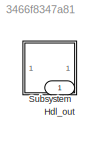
MODEL slx_3466f8347a81
KIND model
CONFIG AbsTol = auto
CONFIG EnableMultiTasking = off
CONFIG FixedStep = auto
CONFIG MaxStep = auto
CONFIG MinStep = auto
CONFIG RelTol = 1e-3
CONFIG SampleTimeConstraint = Unconstrained
CONFIG SolverName = VariableStepAuto
CONFIG StartTime = 0.0
CONFIG StopTime = 10.0
BLOCK [Outport] Hdl_out
  OutDataTypeStr = uint8
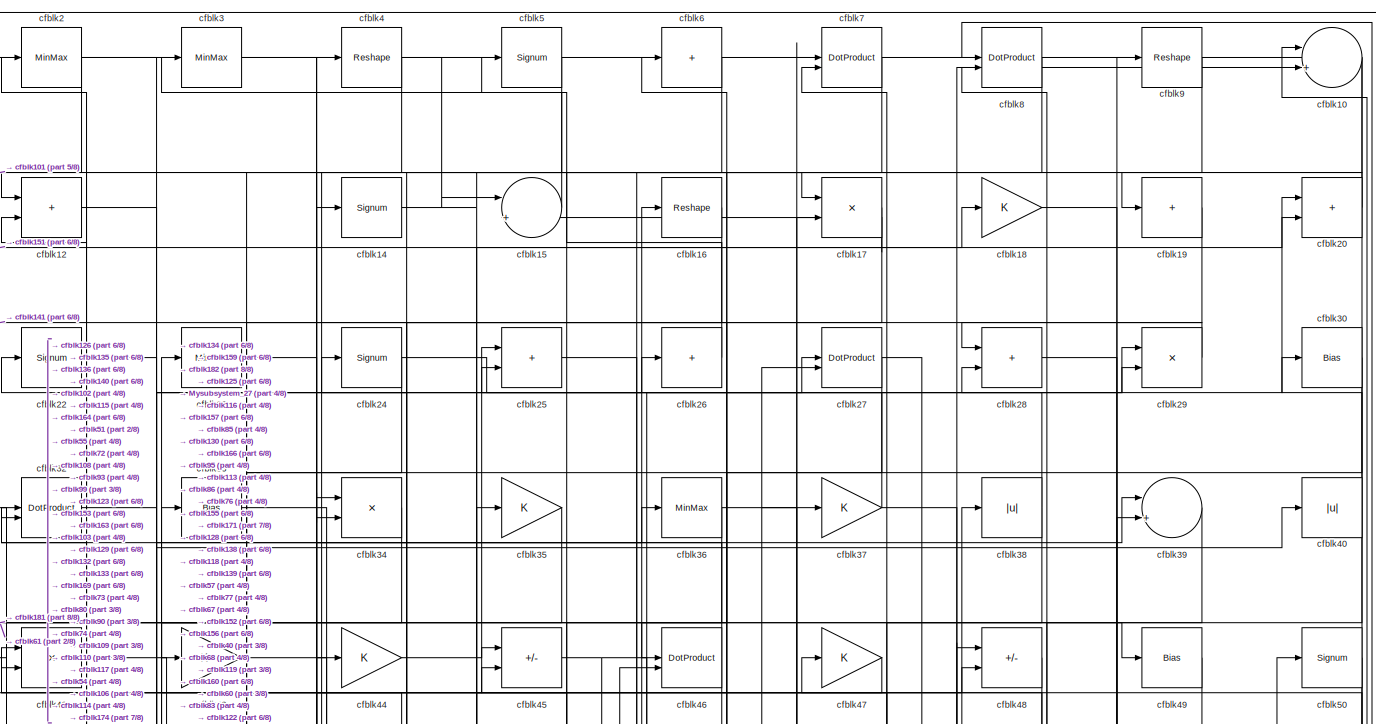
[diagram: Subsystem - part 1/8, full width, top band]
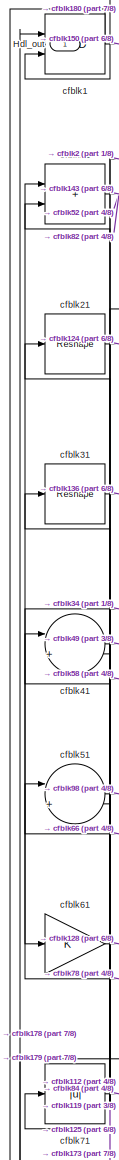
[diagram: Subsystem - part 2/8, top left region]
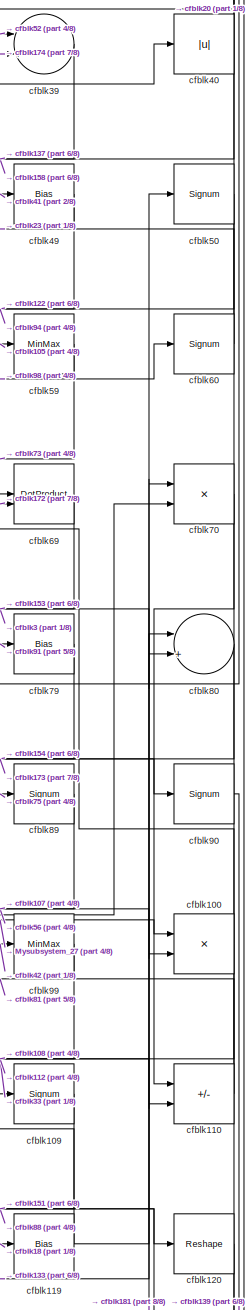
[diagram: Subsystem - part 3/8, middle right region]
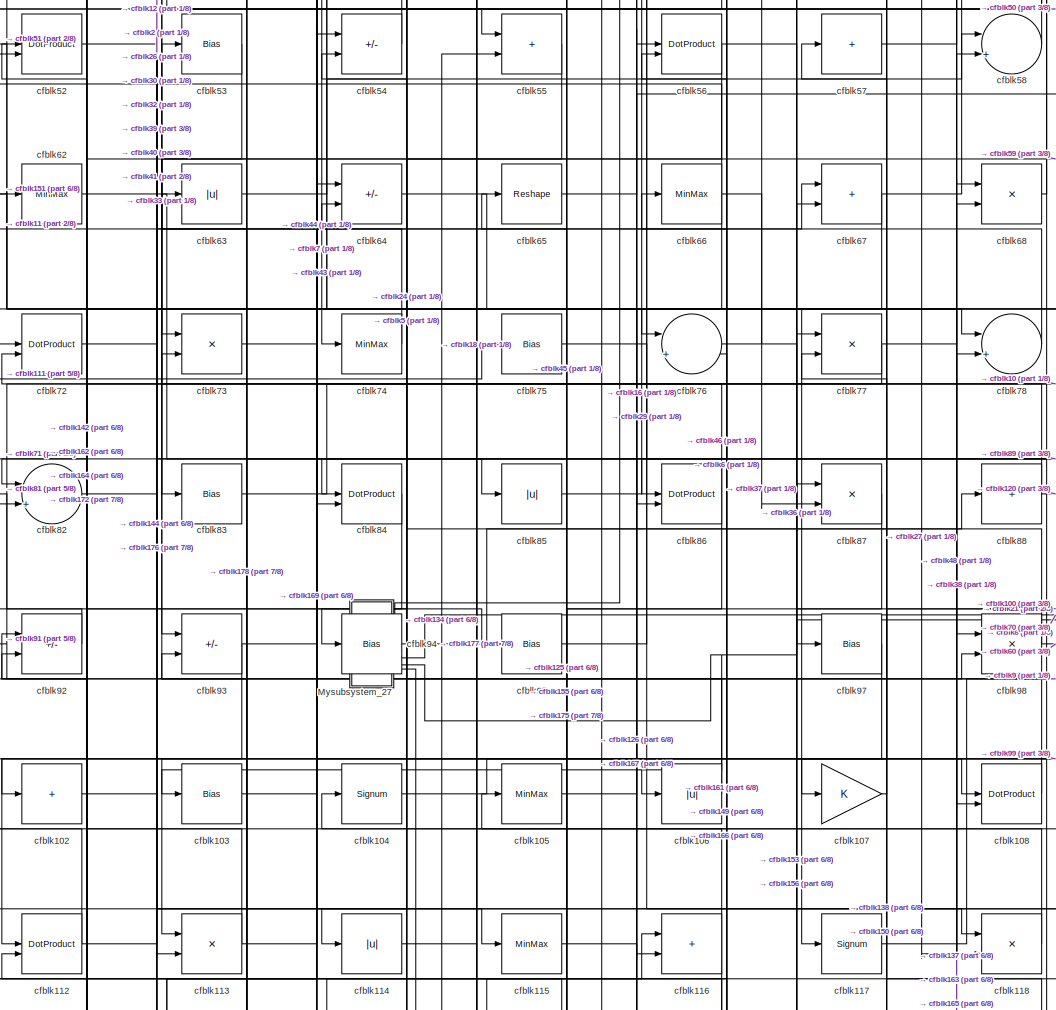
[diagram: Subsystem - part 4/8, central region]
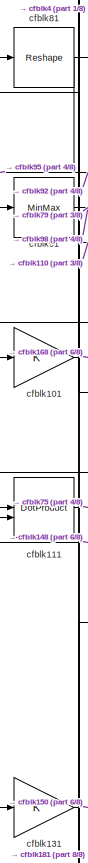
[diagram: Subsystem - part 5/8, middle left region]
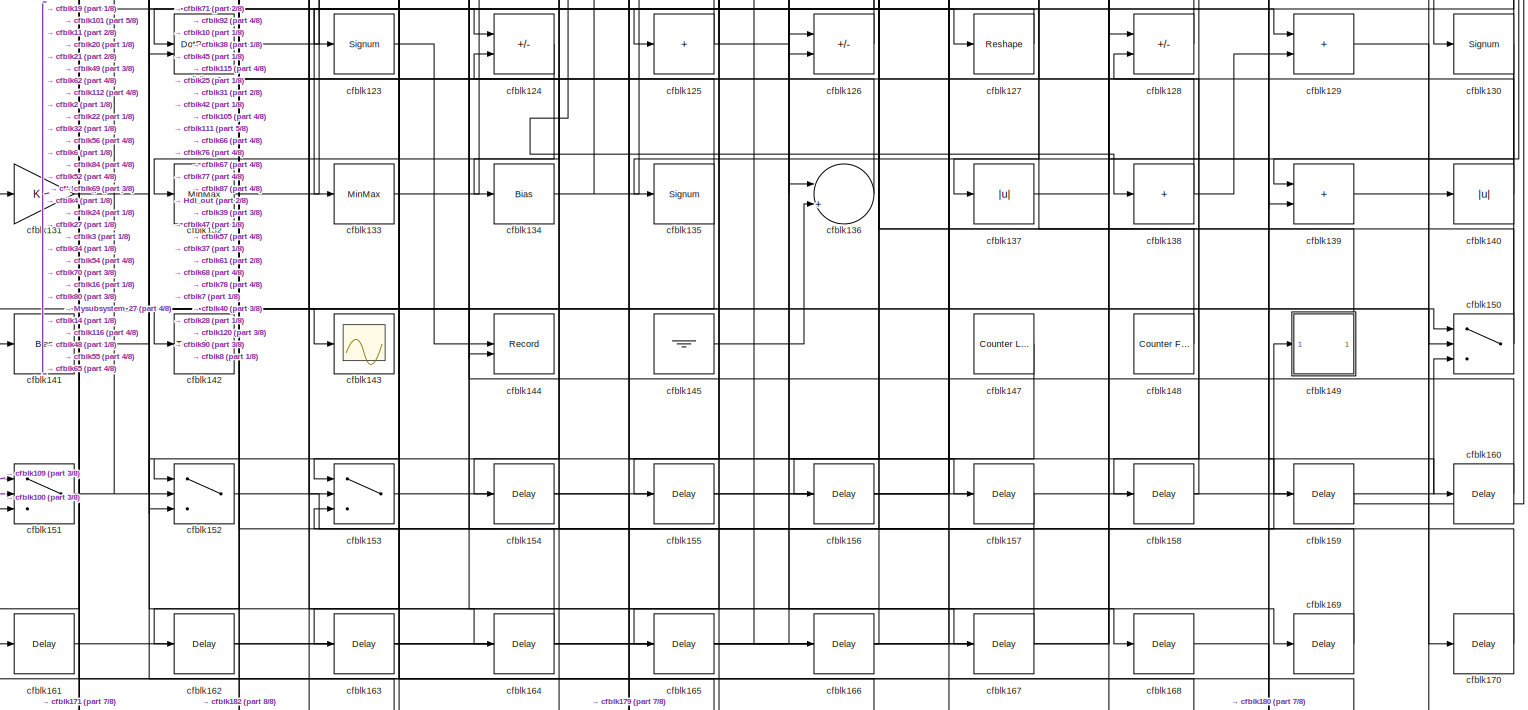
[diagram: Subsystem - part 6/8, full width, bottom band]
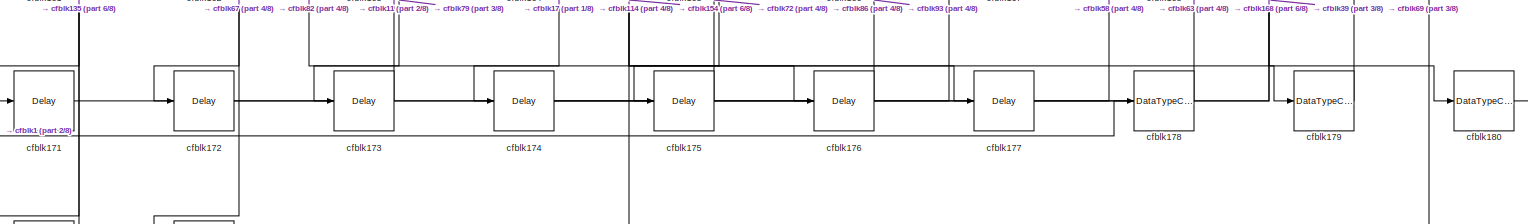
[diagram: Subsystem - part 7/8, full width, bottom band]
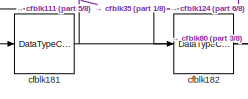
[diagram: Subsystem - part 8/8, bottom left region]
BLOCK [SubSystem] Subsystem
BLOCK [Outport] Subsystem/Hdl_out
  OutDataTypeStr = uint8
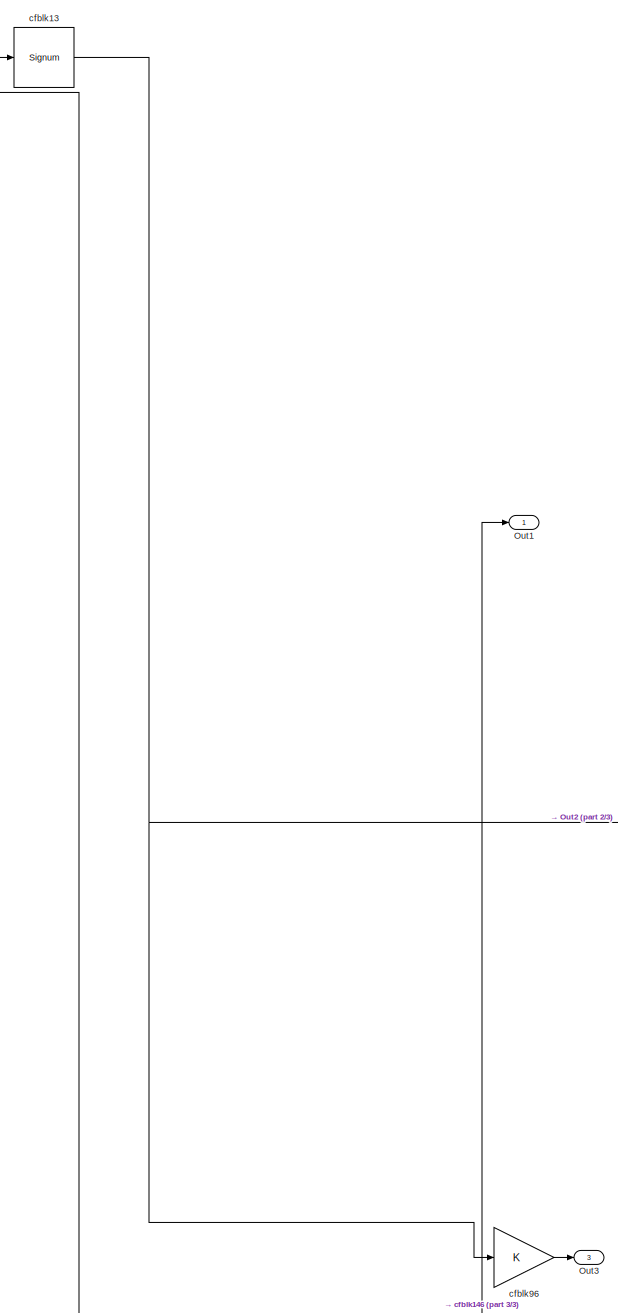
[diagram: Subsystem/Mysubsystem_27 - part 1/3, top center region]
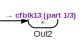
[diagram: Subsystem/Mysubsystem_27 - part 2/3, middle right region]
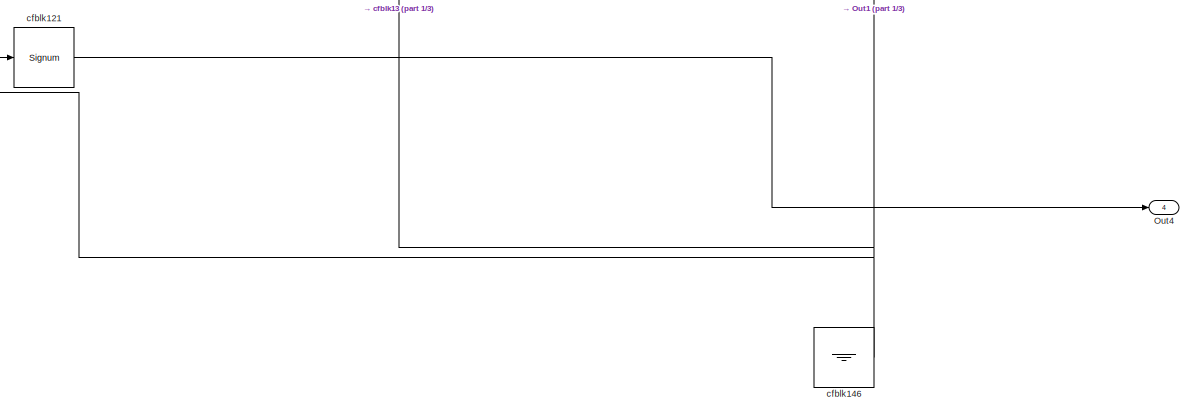
[diagram: Subsystem/Mysubsystem_27 - part 3/3, full width, bottom band]
BLOCK [SubSystem] Subsystem/Mysubsystem_27
  RTWFcnName = Mysubsystem_27
  RTWFcnNameOpts = User specified
  RTWFileNameOpts = Use function name
  RTWSystemCode = Reusable function
  TreatAsAtomicUnit = on
BLOCK [Outport] Subsystem/Mysubsystem_27/Out1
BLOCK [Outport] Subsystem/Mysubsystem_27/Out2
  Port = 2
BLOCK [Outport] Subsystem/Mysubsystem_27/Out3
  Port = 3
BLOCK [Outport] Subsystem/Mysubsystem_27/Out4
  Port = 4
BLOCK [Signum] Subsystem/Mysubsystem_27/cfblk121
BLOCK [Signum] Subsystem/Mysubsystem_27/cfblk13
BLOCK [Ground] Subsystem/Mysubsystem_27/cfblk146
BLOCK [Gain] Subsystem/Mysubsystem_27/cfblk96
BLOCK [Logic] Subsystem/cfblk1
  AllPortsSameDT = off
  OutDataTypeStr = boolean
BLOCK [Sum] Subsystem/cfblk10
  Inputs = |++
  OutDataTypeStr = uint8
BLOCK [Product] Subsystem/cfblk100
  Inputs = */
  OutDataTypeStr = uint8
  RndMeth = Zero
  SaturateOnIntegerOverflow = on
BLOCK [Gain] Subsystem/cfblk101
  OutDataTypeStr = uint8
BLOCK [Sum] Subsystem/cfblk102
  IconShape = rectangular
  Inputs = +
  OutDataTypeStr = uint8
BLOCK [Bias] Subsystem/cfblk103
  Bias = 0.0
  SaturateOnIntegerOverflow = off
BLOCK [Signum] Subsystem/cfblk104
BLOCK [MinMax] Subsystem/cfblk105
  OutDataTypeStr = uint8
BLOCK [Abs] Subsystem/cfblk106
  OutDataTypeStr = uint8
  SaturateOnIntegerOverflow = off
BLOCK [Gain] Subsystem/cfblk107
  OutDataTypeStr = uint8
BLOCK [DotProduct] Subsystem/cfblk108
  OutDataTypeStr = uint8
BLOCK [Signum] Subsystem/cfblk109
BLOCK [Sum] Subsystem/cfblk11
  IconShape = rectangular
  OutDataTypeStr = uint8
BLOCK [Sum] Subsystem/cfblk110
  IconShape = rectangular
  Inputs = +-
  OutDataTypeStr = uint8
BLOCK [DotProduct] Subsystem/cfblk111
  OutDataTypeStr = uint8
BLOCK [DotProduct] Subsystem/cfblk112
  OutDataTypeStr = uint8
BLOCK [Product] Subsystem/cfblk113
  Inputs = */
  OutDataTypeStr = uint8
  RndMeth = Zero
  SaturateOnIntegerOverflow = on
BLOCK [Abs] Subsystem/cfblk114
  OutDataTypeStr = uint8
  SaturateOnIntegerOverflow = off
BLOCK [MinMax] Subsystem/cfblk115
  OutDataTypeStr = uint8
BLOCK [Sum] Subsystem/cfblk116
  IconShape = rectangular
  OutDataTypeStr = uint8
BLOCK [Signum] Subsystem/cfblk117
BLOCK [Product] Subsystem/cfblk118
  Inputs = */
  OutDataTypeStr = uint8
  RndMeth = Zero
  SaturateOnIntegerOverflow = on
BLOCK [Bias] Subsystem/cfblk119
  Bias = 0.0
  SaturateOnIntegerOverflow = off
BLOCK [Sum] Subsystem/cfblk12
  IconShape = rectangular
  OutDataTypeStr = uint8
BLOCK [Reshape] Subsystem/cfblk120
BLOCK [DotProduct] Subsystem/cfblk122
  OutDataTypeStr = uint8
BLOCK [Signum] Subsystem/cfblk123
BLOCK [Sum] Subsystem/cfblk124
  IconShape = rectangular
  Inputs = +-
  OutDataTypeStr = uint8
BLOCK [Sum] Subsystem/cfblk125
  IconShape = rectangular
  Inputs = +
  OutDataTypeStr = uint8
BLOCK [Sum] Subsystem/cfblk126
  IconShape = rectangular
  Inputs = +-
  OutDataTypeStr = uint8
BLOCK [Reshape] Subsystem/cfblk127
BLOCK [Sum] Subsystem/cfblk128
  IconShape = rectangular
  Inputs = +-
  OutDataTypeStr = uint8
BLOCK [Sum] Subsystem/cfblk129
  IconShape = rectangular
  OutDataTypeStr = uint8
BLOCK [Signum] Subsystem/cfblk130
BLOCK [Gain] Subsystem/cfblk131
  OutDataTypeStr = uint8
BLOCK [MinMax] Subsystem/cfblk132
  OutDataTypeStr = uint8
BLOCK [MinMax] Subsystem/cfblk133
  OutDataTypeStr = uint8
BLOCK [Bias] Subsystem/cfblk134
  Bias = 0.0
  SaturateOnIntegerOverflow = off
BLOCK [Signum] Subsystem/cfblk135
BLOCK [Sum] Subsystem/cfblk136
  Inputs = |++
  OutDataTypeStr = uint8
BLOCK [Abs] Subsystem/cfblk137
  OutDataTypeStr = uint8
  SaturateOnIntegerOverflow = off
BLOCK [Sum] Subsystem/cfblk138
  IconShape = rectangular
  Inputs = +
  OutDataTypeStr = uint8
BLOCK [Sum] Subsystem/cfblk139
  IconShape = rectangular
  OutDataTypeStr = uint8
BLOCK [Signum] Subsystem/cfblk14
BLOCK [Abs] Subsystem/cfblk140
  OutDataTypeStr = uint8
  SaturateOnIntegerOverflow = off
BLOCK [Bias] Subsystem/cfblk141
  Bias = 0.0
  SaturateOnIntegerOverflow = off
BLOCK [ToWorkspace] Subsystem/cfblk142
  MaxDataPoints = inf
  SampleTime = -1
  SaveFormat = Timeseries
  VariableName = simout
BLOCK [Scope] Subsystem/cfblk143
  Floating = off
  NumInputPorts = 1
  ScopeSpecificationString = Simulink.scopes.TimeScopeBlockCfg('CurrentConfiguration', extmgr.ConfigurationSet(extmgr.Configuration('Core','General UI',true),extmgr.Configuration('Core','Source UI',true),extmgr.Configuration('Sources','WiredSimulink',true,'DataLoggingSaveFormat','Array','DataLoggingLimitDataPoints',true,'DataLoggingDecimation','1'),extmgr.Configuration('Visuals','Time Domain',true,'DisplayPropertyDefaults',st...<+829ch>
BLOCK [Record] Subsystem/cfblk144
  CompatibilityTag = XY
  FileSettingsInternal = {"entries":[{"content":{"excelSettings":{"content":{},"type":"Streamout.ExcelSettings"}},"type":"Streamout.FileSettingStorage","uuid":""}],"packageUris":["http:\/\/schema.mathworks.com\/mf0\/streamout_blocks\/R2020a"],"version":"1.0"}
  Layout = [1 1]
  SignalsInternal = {"entries":[{"content":{"signals":[{"content":{"blockPath":[],"dimensions":[1],"domain":"","lineColor":"#a2142f","plots":[1],"port":1,"signalID":29023,"signalName":"cfblk123"},"type":"RecordBlkView.Signal","uuid":""},{"content":{"blockPath":[],"dimensions":[1],"domain":"","lineColor":"#139fff","plots":[1],"port":2,"signalID":29026,"signalName":"cfblk52"},"type":"RecordBlkView.Signal","uuid":""}]},...<+143ch>
  VisualizationBindings = {"xyplotplugin":{"info":[{"series":[{"bindingParametersList":[{"parameter":"X-Axis","signalID":29023,"signalName":"cfblk123"},{"parameter":"Y-Axis","signalID":29026,"signalName":"cfblk52"}],"seriesID":36632}],"subplotID":1}]}}
  st = -1
BLOCK [Ground] Subsystem/cfblk145
BLOCK [Reference] Subsystem/cfblk147  REF=hdlsllib/Sources/Counter
Limited
  SourceBlock = hdlsllib/Sources/Counter\nLimited
  SourceType = Counter Limited
BLOCK [Reference] Subsystem/cfblk148  REF=hdlsllib/Sources/Counter
Free-Running
  SourceBlock = hdlsllib/Sources/Counter\nFree-Running
  SourceType = Counter Free-Running
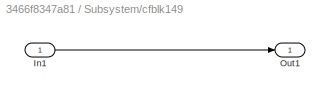
BLOCK [SubSystem] Subsystem/cfblk149
  LibrarySourceBlock = hdlsllib/Ports &\nSubsystems/Subsystem
BLOCK [Inport] Subsystem/cfblk149/In1
BLOCK [Outport] Subsystem/cfblk149/Out1
BLOCK [Sum] Subsystem/cfblk15
  Inputs = |++
  OutDataTypeStr = uint8
BLOCK [Switch] Subsystem/cfblk150
  InputSameDT = off
  OutDataTypeStr = uint8
  SaturateOnIntegerOverflow = off
BLOCK [Switch] Subsystem/cfblk151
  InputSameDT = off
  OutDataTypeStr = uint8
  SaturateOnIntegerOverflow = off
BLOCK [Switch] Subsystem/cfblk152
  InputSameDT = off
  OutDataTypeStr = uint8
  SaturateOnIntegerOverflow = off
BLOCK [Switch] Subsystem/cfblk153
  InputSameDT = off
  OutDataTypeStr = uint8
  SaturateOnIntegerOverflow = off
BLOCK [Delay] Subsystem/cfblk154
  InputPortMap = u0
  SampleTime = 1
BLOCK [Delay] Subsystem/cfblk155
  InputPortMap = u0
  SampleTime = 1
BLOCK [Delay] Subsystem/cfblk156
  InputPortMap = u0
  SampleTime = 1
BLOCK [Delay] Subsystem/cfblk157
  InputPortMap = u0
  SampleTime = 1
BLOCK [Delay] Subsystem/cfblk158
  InputPortMap = u0
  SampleTime = 1
BLOCK [Delay] Subsystem/cfblk159
  InputPortMap = u0
  SampleTime = 1
BLOCK [Reshape] Subsystem/cfblk16
BLOCK [Delay] Subsystem/cfblk160
  InputPortMap = u0
  SampleTime = 1
BLOCK [Delay] Subsystem/cfblk161
  InputPortMap = u0
  SampleTime = 1
BLOCK [Delay] Subsystem/cfblk162
  InputPortMap = u0
  SampleTime = 1
BLOCK [Delay] Subsystem/cfblk163
  InputPortMap = u0
  SampleTime = 1
BLOCK [Delay] Subsystem/cfblk164
  InputPortMap = u0
  SampleTime = 1
BLOCK [Delay] Subsystem/cfblk165
  InputPortMap = u0
  SampleTime = 1
BLOCK [Delay] Subsystem/cfblk166
  InputPortMap = u0
  SampleTime = 1
BLOCK [Delay] Subsystem/cfblk167
  InputPortMap = u0
  SampleTime = 1
BLOCK [Delay] Subsystem/cfblk168
  InputPortMap = u0
  SampleTime = 1
BLOCK [Delay] Subsystem/cfblk169
  InputPortMap = u0
  SampleTime = 1
BLOCK [Product] Subsystem/cfblk17
  Inputs = */
  OutDataTypeStr = uint8
  RndMeth = Zero
  SaturateOnIntegerOverflow = on
BLOCK [Delay] Subsystem/cfblk170
  InputPortMap = u0
  SampleTime = 1
BLOCK [Delay] Subsystem/cfblk171
  InputPortMap = u0
  SampleTime = 1
BLOCK [Delay] Subsystem/cfblk172
  InputPortMap = u0
  SampleTime = 1
BLOCK [Delay] Subsystem/cfblk173
  InputPortMap = u0
  SampleTime = 1
BLOCK [Delay] Subsystem/cfblk174
  InputPortMap = u0
  SampleTime = 1
BLOCK [Delay] Subsystem/cfblk175
  InputPortMap = u0
  SampleTime = 1
BLOCK [Delay] Subsystem/cfblk176
  InputPortMap = u0
  SampleTime = 1
BLOCK [Delay] Subsystem/cfblk177
  InputPortMap = u0
  SampleTime = 1
BLOCK [DataTypeConversion] Subsystem/cfblk178
  OutDataTypeStr = uint8
  RndMeth = Floor
  SaturateOnIntegerOverflow = off
BLOCK [DataTypeConversion] Subsystem/cfblk179
  OutDataTypeStr = uint8
  RndMeth = Floor
  SaturateOnIntegerOverflow = off
BLOCK [Gain] Subsystem/cfblk18
  OutDataTypeStr = uint8
BLOCK [DataTypeConversion] Subsystem/cfblk180
  OutDataTypeStr = uint8
  RndMeth = Floor
  SaturateOnIntegerOverflow = off
BLOCK [DataTypeConversion] Subsystem/cfblk181
  OutDataTypeStr = uint8
  RndMeth = Floor
  SaturateOnIntegerOverflow = off
BLOCK [DataTypeConversion] Subsystem/cfblk182
  OutDataTypeStr = uint8
  RndMeth = Floor
  SaturateOnIntegerOverflow = off
BLOCK [Sum] Subsystem/cfblk19
  IconShape = rectangular
  Inputs = +
  OutDataTypeStr = uint8
BLOCK [MinMax] Subsystem/cfblk2
  OutDataTypeStr = uint8
BLOCK [Sum] Subsystem/cfblk20
  IconShape = rectangular
  OutDataTypeStr = uint8
BLOCK [Reshape] Subsystem/cfblk21
BLOCK [Signum] Subsystem/cfblk22
BLOCK [MinMax] Subsystem/cfblk23
  OutDataTypeStr = uint8
BLOCK [Signum] Subsystem/cfblk24
BLOCK [Sum] Subsystem/cfblk25
  IconShape = rectangular
  OutDataTypeStr = uint8
BLOCK [Sum] Subsystem/cfblk26
  IconShape = rectangular
  Inputs = +
  OutDataTypeStr = uint8
BLOCK [DotProduct] Subsystem/cfblk27
  OutDataTypeStr = uint8
BLOCK [Sum] Subsystem/cfblk28
  IconShape = rectangular
  OutDataTypeStr = uint8
BLOCK [Product] Subsystem/cfblk29
  Inputs = */
  OutDataTypeStr = uint8
  RndMeth = Zero
  SaturateOnIntegerOverflow = on
BLOCK [MinMax] Subsystem/cfblk3
  OutDataTypeStr = uint8
BLOCK [Bias] Subsystem/cfblk30
  Bias = 0.0
  SaturateOnIntegerOverflow = off
BLOCK [Reshape] Subsystem/cfblk31
BLOCK [DotProduct] Subsystem/cfblk32
  OutDataTypeStr = uint8
BLOCK [Bias] Subsystem/cfblk33
  Bias = 0.0
  SaturateOnIntegerOverflow = off
BLOCK [Product] Subsystem/cfblk34
  Inputs = */
  OutDataTypeStr = uint8
  RndMeth = Zero
  SaturateOnIntegerOverflow = on
BLOCK [Gain] Subsystem/cfblk35
  OutDataTypeStr = uint8
BLOCK [MinMax] Subsystem/cfblk36
  OutDataTypeStr = uint8
BLOCK [Gain] Subsystem/cfblk37
  OutDataTypeStr = uint8
BLOCK [Abs] Subsystem/cfblk38
  OutDataTypeStr = uint8
  SaturateOnIntegerOverflow = off
BLOCK [Sum] Subsystem/cfblk39
  Inputs = |++
  OutDataTypeStr = uint8
BLOCK [Reshape] Subsystem/cfblk4
BLOCK [Abs] Subsystem/cfblk40
  OutDataTypeStr = uint8
  SaturateOnIntegerOverflow = off
BLOCK [Sum] Subsystem/cfblk41
  Inputs = |++
  OutDataTypeStr = uint8
BLOCK [Product] Subsystem/cfblk42
  Inputs = */
  OutDataTypeStr = uint8
  RndMeth = Zero
  SaturateOnIntegerOverflow = on
BLOCK [Gain] Subsystem/cfblk43
  OutDataTypeStr = uint8
BLOCK [Gain] Subsystem/cfblk44
  OutDataTypeStr = uint8
BLOCK [Sum] Subsystem/cfblk45
  IconShape = rectangular
  Inputs = +-
  OutDataTypeStr = uint8
BLOCK [DotProduct] Subsystem/cfblk46
  OutDataTypeStr = uint8
BLOCK [Gain] Subsystem/cfblk47
  OutDataTypeStr = uint8
BLOCK [Sum] Subsystem/cfblk48
  IconShape = rectangular
  Inputs = +-
  OutDataTypeStr = uint8
BLOCK [Bias] Subsystem/cfblk49
  Bias = 0.0
  SaturateOnIntegerOverflow = off
BLOCK [Signum] Subsystem/cfblk5
BLOCK [Signum] Subsystem/cfblk50
BLOCK [Sum] Subsystem/cfblk51
  Inputs = |++
  OutDataTypeStr = uint8
BLOCK [DotProduct] Subsystem/cfblk52
  OutDataTypeStr = uint8
BLOCK [Bias] Subsystem/cfblk53
  Bias = 0.0
  SaturateOnIntegerOverflow = off
BLOCK [Sum] Subsystem/cfblk54
  IconShape = rectangular
  Inputs = +-
  OutDataTypeStr = uint8
BLOCK [Sum] Subsystem/cfblk55
  IconShape = rectangular
  OutDataTypeStr = uint8
BLOCK [DotProduct] Subsystem/cfblk56
  OutDataTypeStr = uint8
BLOCK [Sum] Subsystem/cfblk57
  IconShape = rectangular
  Inputs = +
  OutDataTypeStr = uint8
BLOCK [Sum] Subsystem/cfblk58
  Inputs = |++
  OutDataTypeStr = uint8
BLOCK [MinMax] Subsystem/cfblk59
  OutDataTypeStr = uint8
BLOCK [Sum] Subsystem/cfblk6
  IconShape = rectangular
  Inputs = +
  OutDataTypeStr = uint8
BLOCK [Signum] Subsystem/cfblk60
BLOCK [Gain] Subsystem/cfblk61
  OutDataTypeStr = uint8
BLOCK [MinMax] Subsystem/cfblk62
  OutDataTypeStr = uint8
BLOCK [Abs] Subsystem/cfblk63
  OutDataTypeStr = uint8
  SaturateOnIntegerOverflow = off
BLOCK [Sum] Subsystem/cfblk64
  IconShape = rectangular
  Inputs = +-
  OutDataTypeStr = uint8
BLOCK [Reshape] Subsystem/cfblk65
BLOCK [MinMax] Subsystem/cfblk66
  OutDataTypeStr = uint8
BLOCK [Sum] Subsystem/cfblk67
  IconShape = rectangular
  OutDataTypeStr = uint8
BLOCK [Product] Subsystem/cfblk68
  Inputs = */
  OutDataTypeStr = uint8
  RndMeth = Zero
  SaturateOnIntegerOverflow = on
BLOCK [DotProduct] Subsystem/cfblk69
  OutDataTypeStr = uint8
BLOCK [DotProduct] Subsystem/cfblk7
  OutDataTypeStr = uint8
BLOCK [Product] Subsystem/cfblk70
  Inputs = */
  OutDataTypeStr = uint8
  RndMeth = Zero
  SaturateOnIntegerOverflow = on
BLOCK [Abs] Subsystem/cfblk71
  OutDataTypeStr = uint8
  SaturateOnIntegerOverflow = off
BLOCK [DotProduct] Subsystem/cfblk72
  OutDataTypeStr = uint8
BLOCK [Product] Subsystem/cfblk73
  Inputs = */
  OutDataTypeStr = uint8
  RndMeth = Zero
  SaturateOnIntegerOverflow = on
BLOCK [MinMax] Subsystem/cfblk74
  OutDataTypeStr = uint8
BLOCK [Bias] Subsystem/cfblk75
  Bias = 0.0
  SaturateOnIntegerOverflow = off
BLOCK [Sum] Subsystem/cfblk76
  Inputs = |++
  OutDataTypeStr = uint8
BLOCK [Product] Subsystem/cfblk77
  Inputs = */
  OutDataTypeStr = uint8
  RndMeth = Zero
  SaturateOnIntegerOverflow = on
BLOCK [Sum] Subsystem/cfblk78
  Inputs = |++
  OutDataTypeStr = uint8
BLOCK [Bias] Subsystem/cfblk79
  Bias = 0.0
  SaturateOnIntegerOverflow = off
BLOCK [DotProduct] Subsystem/cfblk8
  OutDataTypeStr = uint8
BLOCK [Sum] Subsystem/cfblk80
  Inputs = |++
  OutDataTypeStr = uint8
BLOCK [Reshape] Subsystem/cfblk81
BLOCK [Sum] Subsystem/cfblk82
  Inputs = |++
  OutDataTypeStr = uint8
BLOCK [Bias] Subsystem/cfblk83
  Bias = 0.0
  SaturateOnIntegerOverflow = off
BLOCK [DotProduct] Subsystem/cfblk84
  OutDataTypeStr = uint8
BLOCK [Abs] Subsystem/cfblk85
  OutDataTypeStr = uint8
  SaturateOnIntegerOverflow = off
BLOCK [DotProduct] Subsystem/cfblk86
  OutDataTypeStr = uint8
BLOCK [Product] Subsystem/cfblk87
  Inputs = */
  OutDataTypeStr = uint8
  RndMeth = Zero
  SaturateOnIntegerOverflow = on
BLOCK [Sum] Subsystem/cfblk88
  IconShape = rectangular
  Inputs = +
  OutDataTypeStr = uint8
BLOCK [Signum] Subsystem/cfblk89
BLOCK [Reshape] Subsystem/cfblk9
BLOCK [Signum] Subsystem/cfblk90
BLOCK [MinMax] Subsystem/cfblk91
  OutDataTypeStr = uint8
BLOCK [Sum] Subsystem/cfblk92
  IconShape = rectangular
  Inputs = +-
  OutDataTypeStr = uint8
BLOCK [Sum] Subsystem/cfblk93
  IconShape = rectangular
  Inputs = +-
  OutDataTypeStr = uint8
BLOCK [Bias] Subsystem/cfblk94
  Bias = 0.0
  SaturateOnIntegerOverflow = off
BLOCK [Bias] Subsystem/cfblk95
  Bias = 0.0
  SaturateOnIntegerOverflow = off
BLOCK [Bias] Subsystem/cfblk97
  Bias = 0.0
  SaturateOnIntegerOverflow = off
BLOCK [Product] Subsystem/cfblk98
  Inputs = */
  OutDataTypeStr = uint8
  RndMeth = Zero
  SaturateOnIntegerOverflow = on
BLOCK [MinMax] Subsystem/cfblk99
  OutDataTypeStr = uint8
LINE Subsystem/Mysubsystem_27/cfblk121:1 -> Subsystem/Mysubsystem_27/Out4:1
NET Subsystem/Mysubsystem_27/cfblk13:1 -> Subsystem/Mysubsystem_27/Out2:1, Subsystem/Mysubsystem_27/cfblk96:1
NET Subsystem/Mysubsystem_27/cfblk146:1 -> Subsystem/Mysubsystem_27/Out1:1, Subsystem/Mysubsystem_27/cfblk121:1, Subsystem/Mysubsystem_27/cfblk13:1
LINE Subsystem/Mysubsystem_27/cfblk96:1 -> Subsystem/Mysubsystem_27/Out3:1
LINE Subsystem/Mysubsystem_27:1 -> Subsystem/cfblk46:2
LINE Subsystem/Mysubsystem_27:2 -> Subsystem/cfblk70:2
NET Subsystem/Mysubsystem_27:3 -> Subsystem/cfblk100:1, Subsystem/cfblk113:1
LINE Subsystem/Mysubsystem_27:4 -> Subsystem/cfblk138:1
NET Subsystem/cfblk100:1 -> Subsystem/cfblk108:2, Subsystem/cfblk151:2, Subsystem/cfblk69:1
LINE Subsystem/cfblk101:1 -> Subsystem/cfblk168:1
NET Subsystem/cfblk102:1 -> Subsystem/cfblk118:1, Subsystem/cfblk26:1
LINE Subsystem/cfblk103:1 -> Subsystem/cfblk36:1
LINE Subsystem/cfblk104:1 -> Subsystem/cfblk106:1
LINE Subsystem/cfblk105:1 -> Subsystem/cfblk59:1
LINE Subsystem/cfblk106:1 -> Subsystem/cfblk24:1
LINE Subsystem/cfblk107:1 -> Subsystem/cfblk77:2
LINE Subsystem/cfblk108:1 -> Subsystem/cfblk33:1
LINE Subsystem/cfblk109:1 -> Subsystem/cfblk151:1
LINE Subsystem/cfblk10:1 -> Subsystem/cfblk125:1
LINE Subsystem/cfblk110:1 -> Subsystem/cfblk81:1
LINE Subsystem/cfblk111:1 -> Subsystem/cfblk75:1
NET Subsystem/cfblk112:1 -> Subsystem/cfblk40:1, Subsystem/cfblk41:1
NET Subsystem/cfblk113:1 -> Subsystem/cfblk67:1, Subsystem/cfblk92:1
NET Subsystem/cfblk114:1 -> Subsystem/cfblk177:1, Subsystem/cfblk18:1
NET Subsystem/cfblk115:1 -> Subsystem/cfblk167:1, Subsystem/cfblk45:1
NET Subsystem/cfblk116:1 -> Subsystem/cfblk104:1, Subsystem/cfblk161:1
LINE Subsystem/cfblk117:1 -> Subsystem/cfblk9:1
LINE Subsystem/cfblk118:1 -> Subsystem/cfblk6:1
NET Subsystem/cfblk119:1 -> Subsystem/cfblk41:2, Subsystem/cfblk50:1
NET Subsystem/cfblk11:1 -> Subsystem/cfblk143:1, Subsystem/cfblk52:2, Subsystem/cfblk82:2
LINE Subsystem/cfblk120:1 -> Subsystem/cfblk133:1
LINE Subsystem/cfblk122:1 -> Subsystem/cfblk14:1
LINE Subsystem/cfblk123:1 -> Subsystem/cfblk144:1
LINE Subsystem/cfblk124:1 -> Subsystem/cfblk182:1
NET Subsystem/cfblk125:1 -> Subsystem/cfblk127:1, Subsystem/cfblk65:1, Subsystem/cfblk71:1, Subsystem/cfblk92:2
LINE Subsystem/cfblk126:1 -> Subsystem/cfblk42:1
LINE Subsystem/cfblk127:1 -> Subsystem/cfblk122:1
LINE Subsystem/cfblk128:1 -> Subsystem/cfblk7:2
LINE Subsystem/cfblk129:1 -> Subsystem/cfblk170:1
LINE Subsystem/cfblk12:1 -> Subsystem/cfblk85:1
LINE Subsystem/cfblk130:1 -> Subsystem/cfblk165:1
LINE Subsystem/cfblk131:1 -> Subsystem/cfblk150:2
LINE Subsystem/cfblk132:1 -> Subsystem/cfblk4:1
NET Subsystem/cfblk133:1 -> Subsystem/cfblk45:2, Subsystem/cfblk70:1
NET Subsystem/cfblk134:1 -> Subsystem/cfblk116:1, Subsystem/cfblk48:2, Subsystem/cfblk55:2
NET Subsystem/cfblk135:1 -> Subsystem/cfblk171:1, Subsystem/cfblk2:1
LINE Subsystem/cfblk136:1 -> Subsystem/cfblk32:1
LINE Subsystem/cfblk137:1 -> Subsystem/cfblk68:1
NET Subsystem/cfblk138:1 -> Subsystem/cfblk129:2, Subsystem/cfblk47:1, Subsystem/cfblk66:1
LINE Subsystem/cfblk139:1 -> Subsystem/cfblk140:1
LINE Subsystem/cfblk140:1 -> Subsystem/cfblk22:1
LINE Subsystem/cfblk141:1 -> Subsystem/cfblk150:1
LINE Subsystem/cfblk145:1 -> Subsystem/cfblk136:2
NET Subsystem/cfblk147:1 -> Subsystem/cfblk152:1, Subsystem/cfblk152:3
LINE Subsystem/cfblk148:1 -> Subsystem/cfblk111:1
LINE Subsystem/cfblk149/In1:1 -> Subsystem/cfblk149/Out1:1
LINE Subsystem/cfblk149:1 -> Subsystem/cfblk105:1
NET Subsystem/cfblk14:1 -> Subsystem/cfblk159:1, Subsystem/cfblk17:1
NET Subsystem/cfblk150:1 -> Subsystem/Hdl_out:1, Subsystem/cfblk57:1
NET Subsystem/cfblk151:1 -> Subsystem/cfblk20:2, Subsystem/cfblk62:1
LINE Subsystem/cfblk152:1 -> Subsystem/cfblk149:1
NET Subsystem/cfblk153:1 -> Subsystem/cfblk150:3, Subsystem/cfblk87:1
LINE Subsystem/cfblk154:1 -> Subsystem/cfblk179:1
LINE Subsystem/cfblk155:1 -> Subsystem/cfblk7:1
LINE Subsystem/cfblk156:1 -> Subsystem/cfblk77:1
LINE Subsystem/cfblk157:1 -> Subsystem/cfblk153:3
LINE Subsystem/cfblk158:1 -> Subsystem/cfblk128:2
LINE Subsystem/cfblk159:1 -> Subsystem/cfblk8:1
LINE Subsystem/cfblk15:1 -> Subsystem/cfblk3:1
LINE Subsystem/cfblk160:1 -> Subsystem/cfblk34:1
LINE Subsystem/cfblk161:1 -> Subsystem/cfblk67:2
LINE Subsystem/cfblk162:1 -> Subsystem/cfblk126:1
LINE Subsystem/cfblk163:1 -> Subsystem/cfblk68:2
LINE Subsystem/cfblk164:1 -> Subsystem/cfblk112:2
LINE Subsystem/cfblk165:1 -> Subsystem/cfblk78:2
LINE Subsystem/cfblk166:1 -> Subsystem/cfblk56:2
LINE Subsystem/cfblk167:1 -> Subsystem/cfblk76:2
LINE Subsystem/cfblk168:1 -> Subsystem/cfblk180:1
LINE Subsystem/cfblk169:1 -> Subsystem/cfblk54:1
NET Subsystem/cfblk16:1 -> Subsystem/cfblk134:1, Subsystem/cfblk163:1
LINE Subsystem/cfblk170:1 -> Subsystem/cfblk124:2
LINE Subsystem/cfblk171:1 -> Subsystem/cfblk17:2
LINE Subsystem/cfblk172:1 -> Subsystem/cfblk69:2
LINE Subsystem/cfblk173:1 -> Subsystem/cfblk11:2
LINE Subsystem/cfblk174:1 -> Subsystem/cfblk39:2
LINE Subsystem/cfblk175:1 -> Subsystem/cfblk72:1
LINE Subsystem/cfblk176:1 -> Subsystem/cfblk93:2
LINE Subsystem/cfblk177:1 -> Subsystem/cfblk58:2
LINE Subsystem/cfblk178:1 -> Subsystem/cfblk63:1
LINE Subsystem/cfblk179:1 -> Subsystem/cfblk1:1
NET Subsystem/cfblk17:1 -> Subsystem/cfblk15:2, Subsystem/cfblk174:1, Subsystem/cfblk46:1
LINE Subsystem/cfblk180:1 -> Subsystem/cfblk1:2
NET Subsystem/cfblk181:1 -> Subsystem/cfblk111:2, Subsystem/cfblk80:1
LINE Subsystem/cfblk182:1 -> Subsystem/cfblk35:1
LINE Subsystem/cfblk18:1 -> Subsystem/cfblk119:1
LINE Subsystem/cfblk19:1 -> Subsystem/cfblk141:1
LINE Subsystem/cfblk1:1 -> Subsystem/cfblk178:1
LINE Subsystem/cfblk20:1 -> Subsystem/cfblk19:1
LINE Subsystem/cfblk21:1 -> Subsystem/cfblk124:1
LINE Subsystem/cfblk22:1 -> Subsystem/cfblk164:1
LINE Subsystem/cfblk23:1 -> Subsystem/cfblk90:1
NET Subsystem/cfblk24:1 -> Subsystem/cfblk123:1, Subsystem/cfblk29:2
LINE Subsystem/cfblk25:1 -> Subsystem/cfblk157:1
LINE Subsystem/cfblk26:1 -> Subsystem/cfblk5:1
NET Subsystem/cfblk27:1 -> Subsystem/cfblk118:2, Subsystem/cfblk153:1
LINE Subsystem/cfblk28:1 -> Subsystem/cfblk160:1
LINE Subsystem/cfblk29:1 -> Subsystem/cfblk28:1
NET Subsystem/cfblk2:1 -> Subsystem/cfblk12:1, Subsystem/cfblk51:2, Subsystem/cfblk55:1
LINE Subsystem/cfblk30:1 -> Subsystem/cfblk76:1
LINE Subsystem/cfblk31:1 -> Subsystem/cfblk136:1
NET Subsystem/cfblk32:1 -> Subsystem/cfblk115:1, Subsystem/cfblk27:1
NET Subsystem/cfblk33:1 -> Subsystem/cfblk109:1, Subsystem/cfblk110:2
LINE Subsystem/cfblk34:1 -> Subsystem/cfblk61:1
LINE Subsystem/cfblk35:1 -> Subsystem/cfblk181:1
NET Subsystem/cfblk36:1 -> Subsystem/cfblk108:1, Subsystem/cfblk93:1
NET Subsystem/cfblk37:1 -> Subsystem/cfblk139:2, Subsystem/cfblk25:2
NET Subsystem/cfblk38:1 -> Subsystem/cfblk135:1, Subsystem/cfblk28:2
LINE Subsystem/cfblk39:1 -> Subsystem/cfblk137:1
NET Subsystem/cfblk3:1 -> Subsystem/cfblk129:1, Subsystem/cfblk169:1, Subsystem/cfblk80:2
NET Subsystem/cfblk40:1 -> Subsystem/cfblk158:1, Subsystem/cfblk20:1
LINE Subsystem/cfblk41:1 -> Subsystem/cfblk49:1
LINE Subsystem/cfblk42:1 -> Subsystem/cfblk99:1
LINE Subsystem/cfblk43:1 -> Subsystem/cfblk117:1
LINE Subsystem/cfblk44:1 -> Subsystem/cfblk25:1
NET Subsystem/cfblk45:1 -> Subsystem/cfblk130:1, Subsystem/cfblk166:1
NET Subsystem/cfblk46:1 -> Subsystem/cfblk113:2, Subsystem/cfblk12:2
LINE Subsystem/cfblk47:1 -> Subsystem/cfblk42:2
NET Subsystem/cfblk48:1 -> Subsystem/cfblk152:2, Subsystem/cfblk156:1
LINE Subsystem/cfblk49:1 -> Subsystem/cfblk122:2
NET Subsystem/cfblk4:1 -> Subsystem/cfblk101:1, Subsystem/cfblk15:1
LINE Subsystem/cfblk50:1 -> Subsystem/cfblk94:1
LINE Subsystem/cfblk51:1 -> Subsystem/cfblk98:1
NET Subsystem/cfblk52:1 -> Subsystem/cfblk144:2, Subsystem/cfblk39:1
LINE Subsystem/cfblk53:1 -> Subsystem/cfblk83:1
LINE Subsystem/cfblk54:1 -> Subsystem/cfblk32:2
LINE Subsystem/cfblk55:1 -> Subsystem/cfblk84:1
NET Subsystem/cfblk56:1 -> Subsystem/cfblk100:2, Subsystem/cfblk142:1
LINE Subsystem/cfblk57:1 -> Subsystem/cfblk48:1
LINE Subsystem/cfblk58:1 -> Subsystem/cfblk21:1
LINE Subsystem/cfblk59:1 -> Subsystem/cfblk73:1
LINE Subsystem/cfblk5:1 -> Subsystem/cfblk114:1
LINE Subsystem/cfblk60:1 -> Subsystem/cfblk23:1
LINE Subsystem/cfblk61:1 -> Subsystem/cfblk128:1
LINE Subsystem/cfblk62:1 -> Subsystem/cfblk126:2
LINE Subsystem/cfblk63:1 -> Subsystem/cfblk58:1
LINE Subsystem/cfblk64:1 -> Subsystem/cfblk78:1
LINE Subsystem/cfblk65:1 -> Subsystem/cfblk56:1
NET Subsystem/cfblk66:1 -> Subsystem/cfblk51:1, Subsystem/cfblk82:1, Subsystem/cfblk86:2, Subsystem/cfblk87:2
NET Subsystem/cfblk67:1 -> Subsystem/cfblk172:1, Subsystem/cfblk38:1
LINE Subsystem/cfblk68:1 -> Subsystem/cfblk8:2
NET Subsystem/cfblk69:1 -> Subsystem/cfblk151:3, Subsystem/cfblk153:2
LINE Subsystem/cfblk6:1 -> Subsystem/cfblk132:1
LINE Subsystem/cfblk70:1 -> Subsystem/cfblk110:1
NET Subsystem/cfblk71:1 -> Subsystem/cfblk31:1, Subsystem/cfblk84:2
NET Subsystem/cfblk72:1 -> Subsystem/cfblk30:1, Subsystem/cfblk64:2
LINE Subsystem/cfblk73:1 -> Subsystem/cfblk44:1
LINE Subsystem/cfblk74:1 -> Subsystem/cfblk53:1
LINE Subsystem/cfblk75:1 -> Subsystem/cfblk89:1
NET Subsystem/cfblk76:1 -> Subsystem/cfblk27:2, Subsystem/cfblk37:1, Subsystem/cfblk97:1
NET Subsystem/cfblk77:1 -> Subsystem/cfblk10:2, Subsystem/cfblk72:2
LINE Subsystem/cfblk78:1 -> Subsystem/cfblk11:1
LINE Subsystem/cfblk79:1 -> Subsystem/cfblk173:1
NET Subsystem/cfblk7:1 -> Subsystem/cfblk43:1, Subsystem/cfblk74:1
LINE Subsystem/cfblk80:1 -> Subsystem/cfblk154:1
NET Subsystem/cfblk81:1 -> Subsystem/cfblk131:1, Subsystem/cfblk95:1
LINE Subsystem/cfblk82:1 -> Subsystem/cfblk176:1
LINE Subsystem/cfblk83:1 -> Subsystem/cfblk10:1
LINE Subsystem/cfblk84:1 -> Subsystem/cfblk162:1
LINE Subsystem/cfblk85:1 -> Subsystem/cfblk16:1
NET Subsystem/cfblk86:1 -> Subsystem/cfblk175:1, Subsystem/cfblk73:2
LINE Subsystem/cfblk87:1 -> Subsystem/cfblk155:1
NET Subsystem/cfblk88:1 -> Subsystem/cfblk120:1, Subsystem/cfblk52:1
LINE Subsystem/cfblk89:1 -> Subsystem/cfblk107:1
NET Subsystem/cfblk8:1 -> Subsystem/cfblk34:2, Subsystem/cfblk86:1
LINE Subsystem/cfblk90:1 -> Subsystem/cfblk139:1
NET Subsystem/cfblk91:1 -> Subsystem/cfblk79:1, Subsystem/cfblk98:2
LINE Subsystem/cfblk92:1 -> Subsystem/cfblk91:1
NET Subsystem/cfblk93:1 -> Subsystem/cfblk102:1, Subsystem/cfblk64:1
LINE Subsystem/cfblk94:1 -> Subsystem/cfblk88:1
LINE Subsystem/cfblk95:1 -> Subsystem/cfblk29:1
LINE Subsystem/cfblk97:1 -> Subsystem/cfblk103:1
NET Subsystem/cfblk98:1 -> Subsystem/cfblk54:2, Subsystem/cfblk60:1
LINE Subsystem/cfblk99:1 -> Subsystem/cfblk112:1
LINE Subsystem/cfblk9:1 -> Subsystem/cfblk116:2
note: NET lines group one-source signal fan-out (src -> all destinations, sorted); 1:1 wires keep LINE
